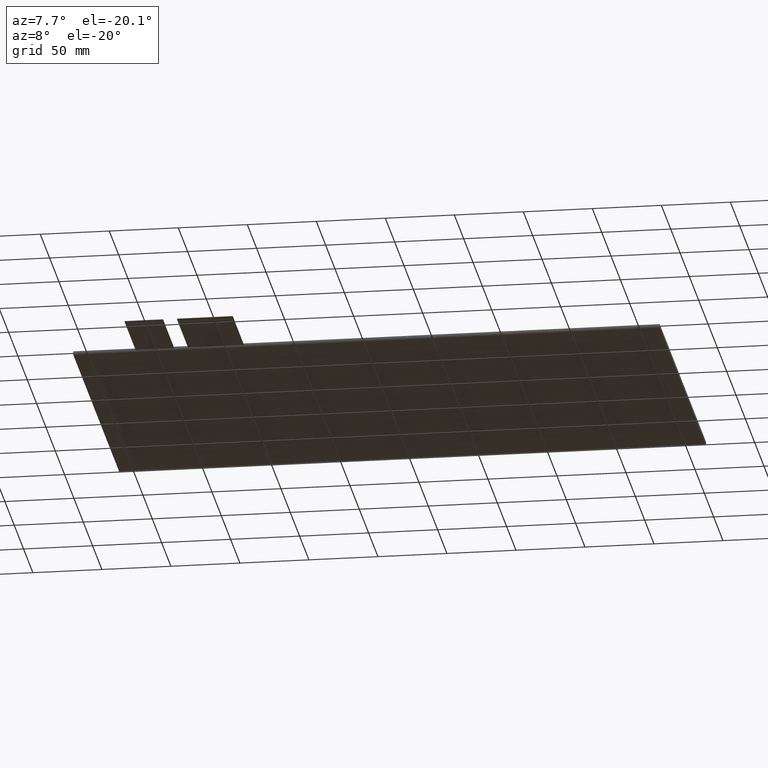
[diagram: clean part render]
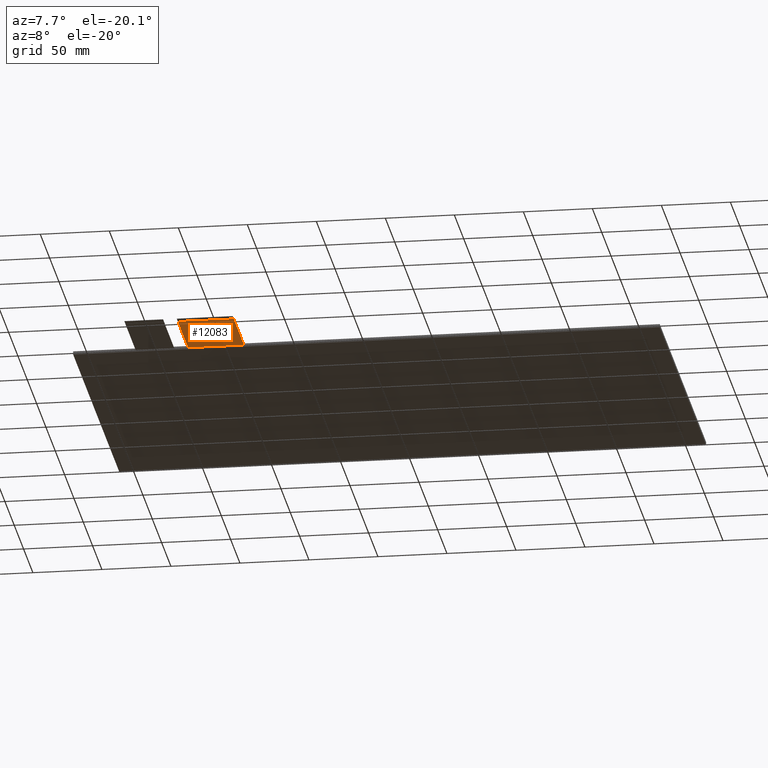
[diagram: same view with one face highlighted and labeled with its STEP entity id]
A machine part, auxiliary view. The second image highlights one B-rep face of the part: STEP entity #12083.
In plain terms, the highlighted planar face has unit normal (0, 0, -1).
Its self-contained STEP definition (entity closure, byte-faithful):
#625=PLANE('',#12689);
#1203=FACE_OUTER_BOUND('',#1781,.T.);
#1781=EDGE_LOOP('',(#11421,#11422,#11423,#11424));
#3452=LINE('',#18906,#5160);
#3458=LINE('',#18917,#5166);
#3467=LINE('',#18936,#5175);
#3471=LINE('',#18943,#5179);
#5160=VECTOR('',#15476,10.);
#5166=VECTOR('',#15484,10.);
#5175=VECTOR('',#15503,10.);
#5179=VECTOR('',#15511,10.);
#6335=VERTEX_POINT('',#18903);
#6336=VERTEX_POINT('',#18905);
#6340=VERTEX_POINT('',#18915);
#6345=VERTEX_POINT('',#18935);
#8028=EDGE_CURVE('',#6336,#6335,#3452,.T.);
#8034=EDGE_CURVE('',#6335,#6340,#3458,.T.);
#8043=EDGE_CURVE('',#6345,#6336,#3467,.T.);
#8047=EDGE_CURVE('',#6345,#6340,#3471,.T.);
#11421=ORIENTED_EDGE('',*,*,#8028,.T.);
#11422=ORIENTED_EDGE('',*,*,#8034,.T.);
#11423=ORIENTED_EDGE('',*,*,#8047,.F.);
#11424=ORIENTED_EDGE('',*,*,#8043,.T.);
#12083=ADVANCED_FACE('',(#1203),#625,.T.);
#12689=AXIS2_PLACEMENT_3D('',#18942,#15509,#15510);
#15476=DIRECTION('',(-1.,0.,0.));
#15484=DIRECTION('',(-2.96059473233375E-16,1.,0.));
#15503=DIRECTION('',(0.,-1.,0.));
#15509=DIRECTION('center_axis',(0.,0.,-1.));
#15510=DIRECTION('ref_axis',(-1.,0.,0.));
#15511=DIRECTION('',(-1.,-8.35932630306E-17,0.));
#18903=CARTESIAN_POINT('',(-129.87,-181.53,-1.2));
#18905=CARTESIAN_POINT('',(-89.3699999999999,-181.53,-1.2));
#18906=CARTESIAN_POINT('',(-99.4949999999999,-181.53,-1.2));
#18915=CARTESIAN_POINT('',(-129.87,-126.53,-1.2));
#18917=CARTESIAN_POINT('',(-129.87,-126.53,-1.2));
#18935=CARTESIAN_POINT('',(-89.3699999999999,-126.53,-1.2));
#18936=CARTESIAN_POINT('',(-89.3699999999999,-186.53,-1.2));
#18942=CARTESIAN_POINT('Origin',(-109.62,-156.53,-1.2));
#18943=CARTESIAN_POINT('',(51.1050000000001,-126.53,-1.2));